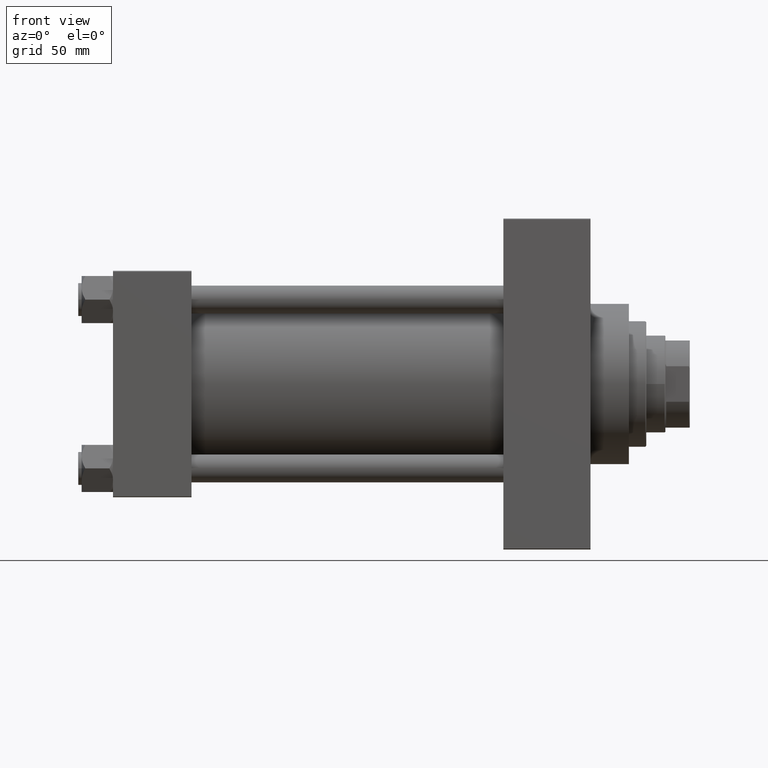
[diagram: clean part render]
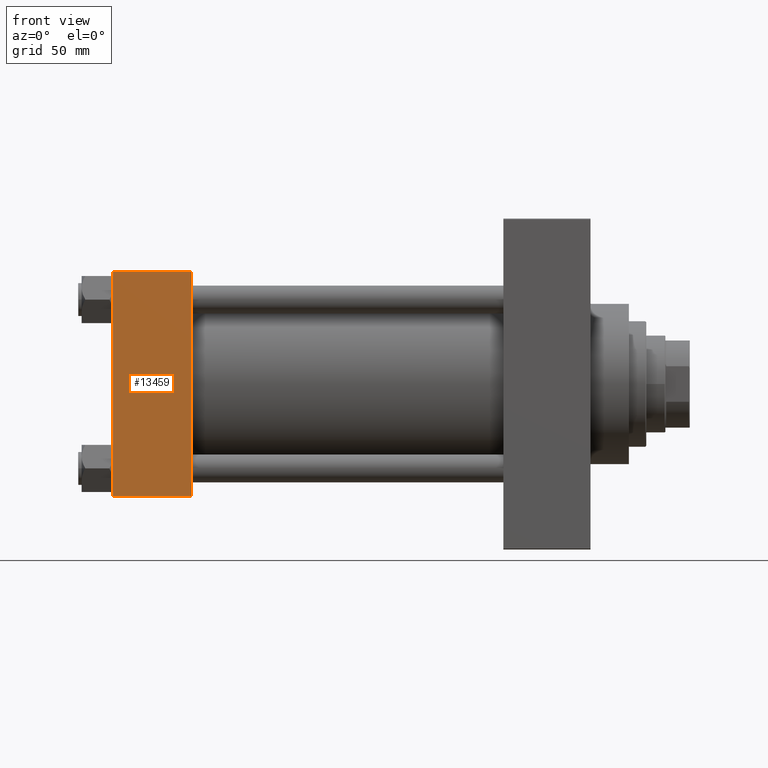
[diagram: same view with one face highlighted and labeled with its STEP entity id]
A machine part, front view. The second image highlights one B-rep face of the part: STEP entity #13459.
In plain terms, the highlighted planar face has unit normal (0, 1, 0).
Its self-contained STEP definition (entity closure, byte-faithful):
#2300 = PLANE ( 'NONE',  #43785 ) ;
#3031 = CARTESIAN_POINT ( 'NONE',  ( 45.00000000000000000, -65.00000000000000000, 65.00000000000000000 ) ) ;
#3270 = LINE ( 'NONE', #3031, #34369 ) ;
#3283 = EDGE_CURVE ( 'NONE', #5633, #25539, #46491, .T. ) ;
#5633 = VERTEX_POINT ( 'NONE', #17608 ) ;
#5684 = FACE_OUTER_BOUND ( 'NONE', #36918, .T. ) ;
#5921 = DIRECTION ( 'NONE',  ( -0.000000000000000000, 1.000000000000000000, 0.000000000000000000 ) ) ;
#6160 = CARTESIAN_POINT ( 'NONE',  ( 0.000000000000000000, -65.00000000000000000, -64.49999999999991473 ) ) ;
#6772 = EDGE_CURVE ( 'NONE', #22641, #13450, #14045, .T. ) ;
#7401 = LINE ( 'NONE', #25499, #27296 ) ;
#7487 = EDGE_CURVE ( 'NONE', #5633, #13450, #3270, .T. ) ;
#8013 = VECTOR ( 'NONE', #24501, 1000.000000000000000 ) ;
#9525 = DIRECTION ( 'NONE',  ( 0.000000000000000000, -0.000000000000000000, 1.000000000000000000 ) ) ;
#13394 = CARTESIAN_POINT ( 'NONE',  ( 45.00000000000000000, -65.00000000000000000, 64.50000000000000000 ) ) ;
#13450 = VERTEX_POINT ( 'NONE', #35143 ) ;
#13459 = ADVANCED_FACE ( 'NONE', ( #5684 ), #2300, .F. ) ;
#14045 = LINE ( 'NONE', #43762, #30507 ) ;
#17608 = CARTESIAN_POINT ( 'NONE',  ( 45.00000000000000000, -65.00000000000000000, 64.50000000000000000 ) ) ;
#19666 = ORIENTED_EDGE ( 'NONE', *, *, #7487, .F. ) ;
#22179 = ORIENTED_EDGE ( 'NONE', *, *, #3283, .T. ) ;
#22496 = EDGE_CURVE ( 'NONE', #25539, #22641, #7401, .T. ) ;
#22641 = VERTEX_POINT ( 'NONE', #6160 ) ;
#24501 = DIRECTION ( 'NONE',  ( -1.000000000000000000, 0.000000000000000000, 0.000000000000000000 ) ) ;
#25499 = CARTESIAN_POINT ( 'NONE',  ( 0.000000000000000000, -65.00000000000000000, 65.00000000000000000 ) ) ;
#25539 = VERTEX_POINT ( 'NONE', #40342 ) ;
#27296 = VECTOR ( 'NONE', #40244, 1000.000000000000000 ) ;
#30507 = VECTOR ( 'NONE', #39421, 1000.000000000000000 ) ;
#31994 = CARTESIAN_POINT ( 'NONE',  ( 45.00000000000000000, -65.00000000000000000, 65.00000000000000000 ) ) ;
#33882 = ORIENTED_EDGE ( 'NONE', *, *, #6772, .T. ) ;
#34369 = VECTOR ( 'NONE', #40443, 1000.000000000000000 ) ;
#35143 = CARTESIAN_POINT ( 'NONE',  ( 45.00000000000000000, -65.00000000000000000, -64.49999999999991473 ) ) ;
#36918 = EDGE_LOOP ( 'NONE', ( #46523, #33882, #19666, #22179 ) ) ;
#39421 = DIRECTION ( 'NONE',  ( 1.000000000000000000, 0.000000000000000000, 0.000000000000000000 ) ) ;
#40244 = DIRECTION ( 'NONE',  ( 0.000000000000000000, 0.000000000000000000, -1.000000000000000000 ) ) ;
#40342 = CARTESIAN_POINT ( 'NONE',  ( 0.000000000000000000, -65.00000000000000000, 64.50000000000000000 ) ) ;
#40443 = DIRECTION ( 'NONE',  ( 0.000000000000000000, 0.000000000000000000, -1.000000000000000000 ) ) ;
#43762 = CARTESIAN_POINT ( 'NONE',  ( 45.00000000000000000, -65.00000000000000000, -64.49999999999991473 ) ) ;
#43785 = AXIS2_PLACEMENT_3D ( 'NONE', #31994, #5921, #9525 ) ;
#46491 = LINE ( 'NONE', #13394, #8013 ) ;
#46523 = ORIENTED_EDGE ( 'NONE', *, *, #22496, .T. ) ;